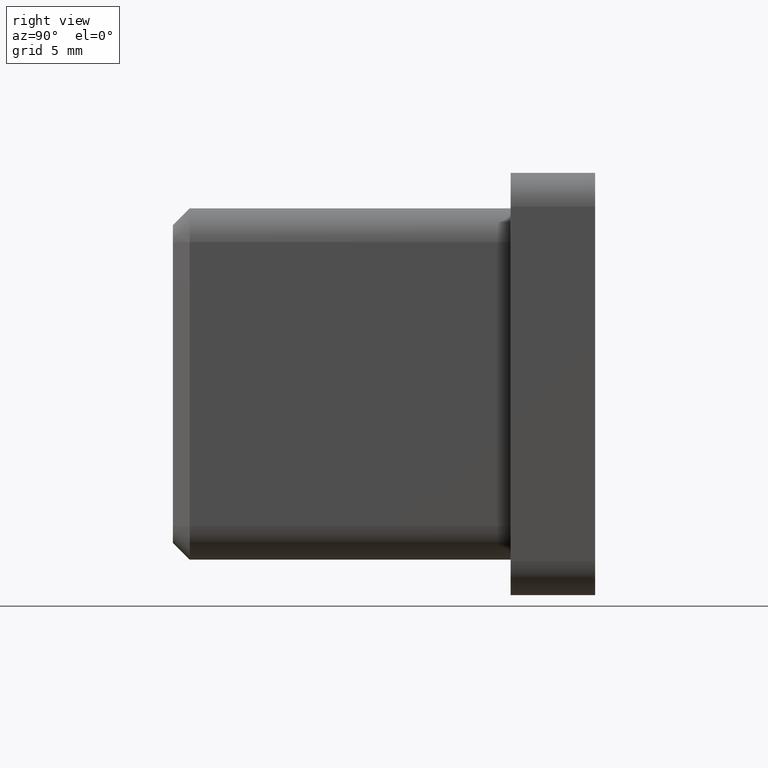
[diagram: clean part render]
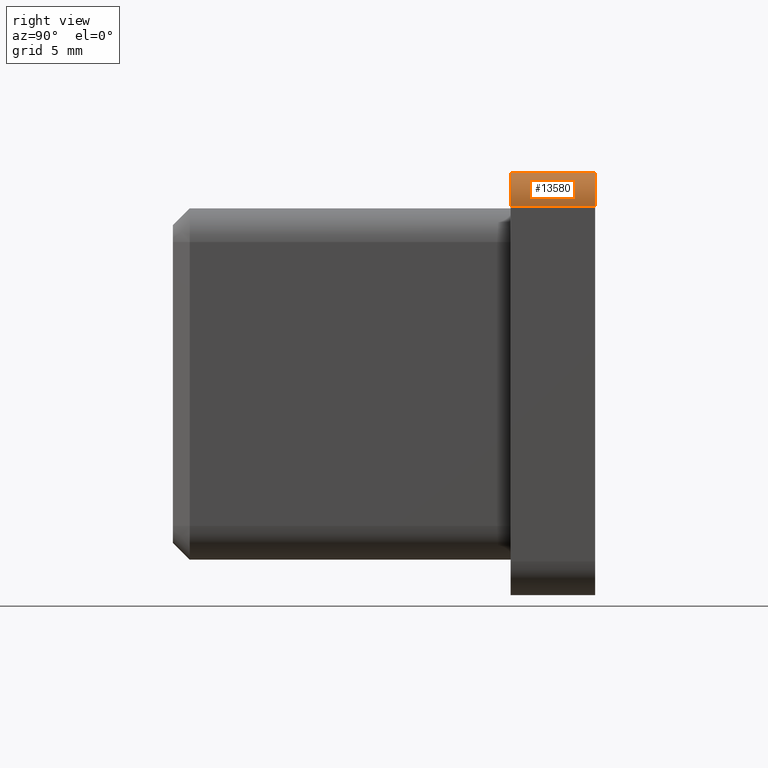
[diagram: same view with one face highlighted and labeled with its STEP entity id]
A machine part, right view. The second image highlights one B-rep face of the part: STEP entity #13580.
In plain terms, the highlighted cylindrical surface (edge-blend (fillet) strip) has radius 2 mm, axis along (0, -1, 0).
Its self-contained STEP definition (entity closure, byte-faithful):
#903 = CARTESIAN_POINT ( 'NONE',  ( 12.50000000000000400, 5.000000000000000000, 10.50000000000000200 ) ) ;
#1800 = ORIENTED_EDGE ( 'NONE', *, *, #5170, .F. ) ;
#2029 = DIRECTION ( 'NONE',  ( -0.0000000000000000000, -1.000000000000000000, -0.0000000000000000000 ) ) ;
#2165 = VERTEX_POINT ( 'NONE', #11509 ) ;
#2984 = CARTESIAN_POINT ( 'NONE',  ( 10.50000000000000400, 0.0000000000000000000, 10.50000000000000200 ) ) ;
#3865 = EDGE_LOOP ( 'NONE', ( #12065, #6823, #14266, #1800 ) ) ;
#3904 = DIRECTION ( 'NONE',  ( -0.0000000000000000000, 1.000000000000000000, -0.0000000000000000000 ) ) ;
#5170 = EDGE_CURVE ( 'NONE', #12887, #7149, #14767, .T. ) ;
#5417 = VECTOR ( 'NONE', #3904, 1000.000000000000000 ) ;
#5451 = EDGE_CURVE ( 'NONE', #2165, #11745, #14033, .T. ) ;
#6784 = CARTESIAN_POINT ( 'NONE',  ( 10.50000000000000200, 5.000000000000000000, 12.50000000000000400 ) ) ;
#6823 = ORIENTED_EDGE ( 'NONE', *, *, #5451, .F. ) ;
#6896 = EDGE_CURVE ( 'NONE', #11745, #12887, #14773, .T. ) ;
#7149 = VERTEX_POINT ( 'NONE', #11830 ) ;
#7174 = DIRECTION ( 'NONE',  ( 0.0000000000000000000, 0.0000000000000000000, -1.000000000000000000 ) ) ;
#7588 = AXIS2_PLACEMENT_3D ( 'NONE', #2984, #2029, #12371 ) ;
#7685 = FACE_OUTER_BOUND ( 'NONE', #3865, .T. ) ;
#7884 = CARTESIAN_POINT ( 'NONE',  ( 10.50000000000000400, 5.000000000000000000, 10.50000000000000200 ) ) ;
#7902 = AXIS2_PLACEMENT_3D ( 'NONE', #7884, #9022, #10235 ) ;
#8422 = CARTESIAN_POINT ( 'NONE',  ( 12.50000000000000400, 5.000000000000000000, 10.50000000000000200 ) ) ;
#9022 = DIRECTION ( 'NONE',  ( 0.0000000000000000000, 1.000000000000000000, 0.0000000000000000000 ) ) ;
#9552 = VECTOR ( 'NONE', #12408, 1000.000000000000000 ) ;
#9676 = EDGE_CURVE ( 'NONE', #7149, #2165, #13734, .T. ) ;
#10235 = DIRECTION ( 'NONE',  ( 0.0000000000000000000, 0.0000000000000000000, 1.000000000000000000 ) ) ;
#11464 = AXIS2_PLACEMENT_3D ( 'NONE', #12895, #14014, #7174 ) ;
#11509 = CARTESIAN_POINT ( 'NONE',  ( 10.50000000000000200, 0.0000000000000000000, 12.50000000000000400 ) ) ;
#11745 = VERTEX_POINT ( 'NONE', #6784 ) ;
#11830 = CARTESIAN_POINT ( 'NONE',  ( 12.50000000000000400, 0.0000000000000000000, 10.50000000000000200 ) ) ;
#12065 = ORIENTED_EDGE ( 'NONE', *, *, #6896, .F. ) ;
#12077 = CARTESIAN_POINT ( 'NONE',  ( 10.50000000000000200, 5.000000000000000000, 12.50000000000000400 ) ) ;
#12371 = DIRECTION ( 'NONE',  ( 0.0000000000000000000, 0.0000000000000000000, 1.000000000000000000 ) ) ;
#12408 = DIRECTION ( 'NONE',  ( 0.0000000000000000000, -1.000000000000000000, 0.0000000000000000000 ) ) ;
#12887 = VERTEX_POINT ( 'NONE', #8422 ) ;
#12895 = CARTESIAN_POINT ( 'NONE',  ( 10.50000000000000400, 5.000000000000000000, 10.50000000000000200 ) ) ;
#13075 = CYLINDRICAL_SURFACE ( 'NONE', #11464, 2.000000000000000000 ) ;
#13580 = ADVANCED_FACE ( 'NONE', ( #7685 ), #13075, .T. ) ;
#13734 = CIRCLE ( 'NONE', #7588, 2.000000000000000000 ) ;
#14014 = DIRECTION ( 'NONE',  ( 0.0000000000000000000, -1.000000000000000000, 0.0000000000000000000 ) ) ;
#14033 = LINE ( 'NONE', #12077, #5417 ) ;
#14266 = ORIENTED_EDGE ( 'NONE', *, *, #9676, .F. ) ;
#14767 = LINE ( 'NONE', #903, #9552 ) ;
#14773 = CIRCLE ( 'NONE', #7902, 2.000000000000000000 ) ;